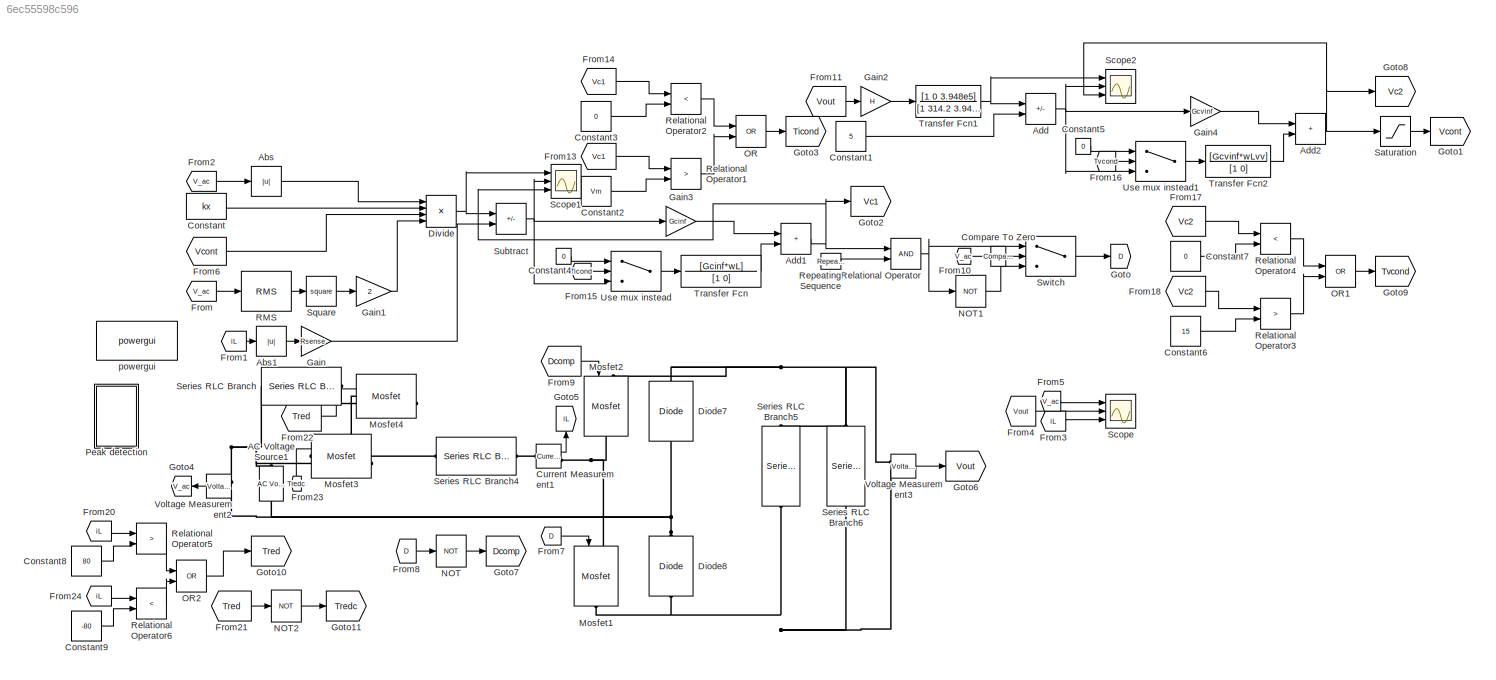
MODEL slx_6ec55598c596
KIND model
CONFIG AbsTol = auto
CONFIG EnableMultiTasking = off
CONFIG FixedStep = 1e-7
CONFIG MaxStep = auto
CONFIG MinStep = auto
CONFIG RelTol = 1e-3
CONFIG SampleTimeConstraint = Unconstrained
CONFIG SolverName = ode4
CONFIG StartTime = 0.0
CONFIG StopTime = 0.5
BLOCK [Reference] AC Voltage Source1  REF=spsACVoltageSourceLib/AC Voltage Source
  Ports = [0, 0, 0, 0, 0, 1, 1]
  SourceBlock = spsACVoltageSourceLib/AC Voltage Source
  SourceProductBaseCode = PS
  SourceType = AC Voltage Source
BLOCK [Abs] Abs
  SaturateOnIntegerOverflow = off
BLOCK [Abs] Abs1
  SaturateOnIntegerOverflow = off
BLOCK [Sum] Add
  IconShape = rectangular
  Inputs = -+
  Ports = [2, 1]
BLOCK [Sum] Add1
  IconShape = rectangular
  Ports = [2, 1]
BLOCK [Sum] Add2
  IconShape = rectangular
  Ports = [2, 1]
BLOCK [Reference] Compare To Zero  REF=hdlsllib/Logic and Bit
Operations/Compare
To Zero
  Ports = [1, 1]
  SourceBlock = hdlsllib/Logic and Bit\nOperations/Compare\nTo Zero
  SourceProductBaseCode = SL
  SourceType = Compare To Zero
BLOCK [Constant] Constant
  Value = kx
BLOCK [Constant] Constant1
  Value = 5
BLOCK [Constant] Constant2
  Value = Vm
BLOCK [Constant] Constant3
  Value = 0
BLOCK [Constant] Constant4
  Value = 0
BLOCK [Constant] Constant5
  Value = 0
BLOCK [Constant] Constant6
  Value = 15
BLOCK [Constant] Constant7
  Value = 0
BLOCK [Constant] Constant8
  Value = 80
BLOCK [Constant] Constant9
  Value = -80
BLOCK [Reference] Current Measurement1  REF=spsCurrentMeasurementLib/Current Measurement
  Ports = [0, 1, 0, 0, 0, 1, 1]
  SourceBlock = spsCurrentMeasurementLib/Current Measurement
  SourceProductBaseCode = PS
  SourceType = Current Measurement
  UserDataPersistent = on
BLOCK [Reference] Diode7  REF=spsDiodeLib/Diode
  NameLocation = right
  Ports = [0, 0, 0, 0, 0, 1, 1]
  SourceBlock = spsDiodeLib/Diode
  SourceProductBaseCode = PS
  SourceType = Diode
BLOCK [Reference] Diode8  REF=spsDiodeLib/Diode
  NameLocation = right
  Ports = [0, 0, 0, 0, 0, 1, 1]
  SourceBlock = spsDiodeLib/Diode
  SourceProductBaseCode = PS
  SourceType = Diode
BLOCK [Product] Divide
  Inputs = ***/
  Ports = [4, 1]
BLOCK [From] From
  GotoTag = V_ac
BLOCK [From] From1
  GotoTag = iL
BLOCK [From] From10
  GotoTag = V_ac
BLOCK [From] From11
  GotoTag = Vout
BLOCK [From] From13
  GotoTag = Vc1
BLOCK [From] From14
  GotoTag = Vc1
BLOCK [From] From15
  GotoTag = Ticond
BLOCK [From] From16
  GotoTag = Tvcond
BLOCK [From] From17
  GotoTag = Vc2
BLOCK [From] From18
  GotoTag = Vc2
BLOCK [From] From2
  GotoTag = V_ac
BLOCK [From] From20
  GotoTag = iL
BLOCK [From] From21
  GotoTag = Tred
BLOCK [From] From22
  GotoTag = Tred
BLOCK [From] From23
  GotoTag = Tredc
  NameLocation = right
BLOCK [From] From24
  GotoTag = iL
BLOCK [From] From3
  GotoTag = iL
BLOCK [From] From4
  GotoTag = Vout
BLOCK [From] From5
  GotoTag = V_ac
BLOCK [From] From6
  GotoTag = Vcont
BLOCK [From] From7
  GotoTag = D
BLOCK [From] From8
  GotoTag = D
BLOCK [From] From9
  GotoTag = Dcomp
BLOCK [Gain] Gain
  Gain = Rsense
BLOCK [Gain] Gain1
  Gain = 2
BLOCK [Gain] Gain2
  Gain = H
BLOCK [Gain] Gain3
  Gain = Gcinf
BLOCK [Gain] Gain4
  Gain = Gcvinf
BLOCK [Goto] Goto
  GotoTag = D
BLOCK [Goto] Goto1
  GotoTag = Vcont
BLOCK [Goto] Goto10
  GotoTag = Tred
BLOCK [Goto] Goto11
  GotoTag = Tredc
BLOCK [Goto] Goto2
  GotoTag = Vc1
BLOCK [Goto] Goto3
  GotoTag = Ticond
BLOCK [Goto] Goto4
  GotoTag = V_ac
BLOCK [Goto] Goto5
  GotoTag = iL
  NameLocation = right
BLOCK [Goto] Goto6
  GotoTag = Vout
BLOCK [Goto] Goto7
  GotoTag = Dcomp
BLOCK [Goto] Goto8
  GotoTag = Vc2
BLOCK [Goto] Goto9
  GotoTag = Tvcond
BLOCK [Reference] Mosfet1  REF=spsMosfetLib/Mosfet
  NameLocation = left
  Ports = [1, 0, 0, 0, 0, 1, 1]
  SourceBlock = spsMosfetLib/Mosfet
  SourceProductBaseCode = PS
  SourceType = Mosfet
BLOCK [Reference] Mosfet2  REF=spsMosfetLib/Mosfet
  NameLocation = left
  Ports = [1, 0, 0, 0, 0, 1, 1]
  SourceBlock = spsMosfetLib/Mosfet
  SourceProductBaseCode = PS
  SourceType = Mosfet
BLOCK [Reference] Mosfet3  REF=spsMosfetLib/Mosfet
  Ports = [1, 0, 0, 0, 0, 1, 1]
  SourceBlock = spsMosfetLib/Mosfet
  SourceProductBaseCode = PS
  SourceType = Mosfet
BLOCK [Reference] Mosfet4  REF=spsMosfetLib/Mosfet
  Ports = [1, 0, 0, 0, 0, 1, 1]
  SourceBlock = spsMosfetLib/Mosfet
  SourceProductBaseCode = PS
  SourceType = Mosfet
BLOCK [Logic] NOT
  AllPortsSameDT = off
  IconShape = distinctive
  Operator = NOT
  OutDataTypeStr = boolean
  Ports = [1, 1]
BLOCK [Logic] NOT1
  AllPortsSameDT = off
  IconShape = distinctive
  Operator = NOT
  OutDataTypeStr = boolean
  Ports = [1, 1]
BLOCK [Logic] NOT2
  AllPortsSameDT = off
  IconShape = distinctive
  Operator = NOT
  OutDataTypeStr = boolean
  Ports = [1, 1]
BLOCK [Logic] OR
  AllPortsSameDT = off
  IconShape = distinctive
  Operator = OR
  OutDataTypeStr = boolean
  Ports = [2, 1]
BLOCK [Logic] OR1
  AllPortsSameDT = off
  IconShape = distinctive
  Operator = OR
  OutDataTypeStr = boolean
  Ports = [2, 1]
BLOCK [Logic] OR2
  AllPortsSameDT = off
  IconShape = distinctive
  Operator = OR
  OutDataTypeStr = boolean
  Ports = [2, 1]
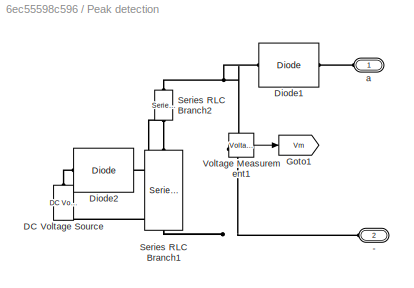
BLOCK [SubSystem] Peak detection
  Commented = on
  Ports = [0, 0, 0, 0, 0, 2]
  RequestExecContextInheritance = off
BLOCK [PMIOPort] Peak detection/-
  NameLocation = top
  Port = 2
  Side = Left
BLOCK [Reference] Peak detection/DC Voltage Source  REF=spsDCVoltageSourceLib/DC Voltage Source
  Ports = [0, 0, 0, 0, 0, 1, 1]
  SourceBlock = spsDCVoltageSourceLib/DC Voltage Source
  SourceProductBaseCode = PS
  SourceType = DC Voltage Source
BLOCK [Reference] Peak detection/Diode1  REF=spsDiodeLib/Diode
  NameLocation = top
  Ports = [0, 0, 0, 0, 0, 1, 1]
  SourceBlock = spsDiodeLib/Diode
  SourceProductBaseCode = PS
  SourceType = Diode
BLOCK [Reference] Peak detection/Diode2  REF=spsDiodeLib/Diode
  Ports = [0, 0, 0, 0, 0, 1, 1]
  SourceBlock = spsDiodeLib/Diode
  SourceProductBaseCode = PS
  SourceType = Diode
BLOCK [Goto] Peak detection/Goto1
  GotoTag = Vm
BLOCK [Reference] Peak detection/Series RLC Branch1  REF=spsSeriesRLCBranchLib/Series RLC Branch
  NameLocation = left
  Ports = [0, 0, 0, 0, 0, 1, 1]
  SourceBlock = spsSeriesRLCBranchLib/Series RLC Branch
  SourceProductBaseCode = PS
  SourceType = Series RLC Branch
BLOCK [Reference] Peak detection/Series RLC Branch2  REF=spsSeriesRLCBranchLib/Series RLC Branch
  NameLocation = left
  Ports = [0, 0, 0, 0, 0, 1, 1]
  SourceBlock = spsSeriesRLCBranchLib/Series RLC Branch
  SourceProductBaseCode = PS
  SourceType = Series RLC Branch
BLOCK [Reference] Peak detection/Voltage Measurement1  REF=spsVoltageMeasurementLib/Voltage Measurement
  Ports = [0, 1, 0, 0, 0, 2]
  SourceBlock = spsVoltageMeasurementLib/Voltage Measurement
  SourceProductBaseCode = PS
  SourceType = Voltage Measurement
  UserDataPersistent = on
BLOCK [PMIOPort] Peak detection/a
  Side = Left
BLOCK [Reference] RMS  REF=spsRMSLib/RMS
  Ports = [1, 1]
  SourceBlock = spsRMSLib/RMS
  SourceProductBaseCode = PS
  SourceType = RMS
BLOCK [RelationalOperator] Relational Operator
  InputSameDT = off
  OutDataTypeStr = boolean
  Ports = [2, 1]
  RndMeth = Simplest
BLOCK [RelationalOperator] Relational Operator1
  InputSameDT = off
  Operator = >
  OutDataTypeStr = boolean
  Ports = [2, 1]
  RndMeth = Simplest
BLOCK [RelationalOperator] Relational Operator2
  InputSameDT = off
  Operator = <
  OutDataTypeStr = boolean
  Ports = [2, 1]
  RndMeth = Simplest
BLOCK [RelationalOperator] Relational Operator3
  InputSameDT = off
  Operator = >
  OutDataTypeStr = boolean
  Ports = [2, 1]
  RndMeth = Simplest
BLOCK [RelationalOperator] Relational Operator4
  InputSameDT = off
  Operator = <
  OutDataTypeStr = boolean
  Ports = [2, 1]
  RndMeth = Simplest
BLOCK [RelationalOperator] Relational Operator5
  InputSameDT = off
  Operator = >
  OutDataTypeStr = boolean
  Ports = [2, 1]
  RndMeth = Simplest
BLOCK [RelationalOperator] Relational Operator6
  InputSameDT = off
  Operator = <
  OutDataTypeStr = boolean
  Ports = [2, 1]
  RndMeth = Simplest
BLOCK [Reference] Repeating Sequence  REF=simulink/Sources/Repeating
Sequence
  Ports = [0, 1]
  SourceBlock = simulink/Sources/Repeating\nSequence
  SourceProductBaseCode = SL
  SourceType = Repeating table
BLOCK [Saturate] Saturation
  LowerLimit = 0
  UpperLimit = 15
BLOCK [Scope] Scope
  Floating = off
  NumInputPorts = 3
  Ports = [3]
  ScopeSpecificationString = Simulink.scopes.TimeScopeBlockCfg('CurrentConfiguration', extmgr.ConfigurationSet(extmgr.Configuration('Core','General UI',true),extmgr.Configuration('Core','Source UI',true),extmgr.Configuration('Sources','WiredSimulink',true,'DataLogging',true,'DataLoggingVariableName','ScopeData1','DataLoggingSaveFormat','StructureWithTime'),extmgr.Configuration('Visuals','Time Domain',true,'SerializedDisplays'...<+2847ch>
BLOCK [Scope] Scope1
  Floating = off
  NumInputPorts = 3
  Ports = [3]
  ScopeSpecificationString = Simulink.scopes.TimeScopeBlockCfg('CurrentConfiguration', extmgr.ConfigurationSet(extmgr.Configuration('Core','General UI',true),extmgr.Configuration('Core','Source UI',true),extmgr.Configuration('Sources','WiredSimulink',true,'DataLoggingVariableName','ScopeData1','DataLoggingSaveFormat','StructureWithTime'),extmgr.Configuration('Visuals','Time Domain',true,'SerializedDisplays',{struct('MinYLimRe...<+2849ch>
BLOCK [Scope] Scope2
  Floating = off
  NumInputPorts = 3
  Ports = [3]
  ScopeSpecificationString = Simulink.scopes.TimeScopeBlockCfg('CurrentConfiguration', extmgr.ConfigurationSet(extmgr.Configuration('Core','General UI',true),extmgr.Configuration('Core','Source UI',true),extmgr.Configuration('Sources','WiredSimulink',true,'DataLoggingVariableName','ScopeData2','DataLoggingSaveFormat','StructureWithTime'),extmgr.Configuration('Visuals','Time Domain',true,'SerializedDisplays',{struct('MinYLimRe...<+2852ch>
BLOCK [Reference] Series RLC Branch  REF=spsSeriesRLCBranchLib/Series RLC Branch
  Ports = [0, 0, 0, 0, 0, 1, 1]
  SourceBlock = spsSeriesRLCBranchLib/Series RLC Branch
  SourceProductBaseCode = PS
  SourceType = Series RLC Branch
BLOCK [Reference] Series RLC Branch4  REF=spsSeriesRLCBranchLib/Series RLC Branch
  Ports = [0, 0, 0, 0, 0, 1, 1]
  SourceBlock = spsSeriesRLCBranchLib/Series RLC Branch
  SourceProductBaseCode = PS
  SourceType = Series RLC Branch
BLOCK [Reference] Series RLC Branch5  REF=spsSeriesRLCBranchLib/Series RLC Branch
  NameLocation = left
  Ports = [0, 0, 0, 0, 0, 1, 1]
  SourceBlock = spsSeriesRLCBranchLib/Series RLC Branch
  SourceProductBaseCode = PS
  SourceType = Series RLC Branch
BLOCK [Reference] Series RLC Branch6  REF=spsSeriesRLCBranchLib/Series RLC Branch
  NameLocation = left
  Ports = [0, 0, 0, 0, 0, 1, 1]
  SourceBlock = spsSeriesRLCBranchLib/Series RLC Branch
  SourceProductBaseCode = PS
  SourceType = Series RLC Branch
BLOCK [Math] Square
  Operator = square
  OutputSignalType = real
  Ports = [1, 1]
BLOCK [Sum] Subtract
  IconShape = rectangular
  Inputs = +-
  Ports = [2, 1]
BLOCK [Switch] Switch
  Criteria = u2 > Threshold
  InputSameDT = off
  SaturateOnIntegerOverflow = off
BLOCK [TransferFcn] Transfer Fcn
  Denominator = [1 0]
  Numerator = [Gcinf*wL]
BLOCK [TransferFcn] Transfer Fcn1
  Denominator = [1 314.2 3.948e5]
  Numerator = [1 0 3.948e5]
BLOCK [TransferFcn] Transfer Fcn2
  Denominator = [1 0]
  Numerator = [Gcvinf*wLvv]
BLOCK [Switch] Use mux instead
  Criteria = u2 > Threshold
  InputSameDT = off
  SaturateOnIntegerOverflow = off
  Threshold = 0.1
BLOCK [Switch] Use mux instead1
  Criteria = u2 > Threshold
  InputSameDT = off
  SaturateOnIntegerOverflow = off
  Threshold = 0.1
BLOCK [Reference] Voltage Measurement2  REF=spsVoltageMeasurementLib/Voltage Measurement
  Ports = [0, 1, 0, 0, 0, 2]
  SourceBlock = spsVoltageMeasurementLib/Voltage Measurement
  SourceProductBaseCode = PS
  SourceType = Voltage Measurement
  UserDataPersistent = on
BLOCK [Reference] Voltage Measurement3  REF=spsVoltageMeasurementLib/Voltage Measurement
  Ports = [0, 1, 0, 0, 0, 2]
  SourceBlock = spsVoltageMeasurementLib/Voltage Measurement
  SourceProductBaseCode = PS
  SourceType = Voltage Measurement
  UserDataPersistent = on
BLOCK [Reference] powergui  REF=spspowerguiLib/powergui
  Ports = []
  Priority = 1
  SourceBlock = spspowerguiLib/powergui
  SourceProductBaseCode = PS
  SourceType = PSB option menu block
LINE Abs1:1 -> Gain:1
LINE Abs:1 -> Divide:1
NET Add1:1 -> Goto2:1, Relational Operator:1, Scope1:3
NET Add2:1 -> Goto8:1, Saturation:1, Scope2:3
NET Add:1 -> Gain4:1, Scope2:2, Use mux instead1:3
LINE Compare To Zero:1 -> Switch:2
LINE Constant1:1 -> Add:2
LINE Constant2:1 -> Relational Operator1:2
LINE Constant3:1 -> Relational Operator2:2
LINE Constant4:1 -> Use mux instead:1
LINE Constant5:1 -> Use mux instead1:1
LINE Constant6:1 -> Relational Operator3:2
LINE Constant7:1 -> Relational Operator4:2
LINE Constant8:1 -> Relational Operator5:2
LINE Constant9:1 -> Relational Operator6:2
LINE Constant:1 -> Divide:2
LINE Current Measurement1:1 -> Goto5:1
NET Divide:1 -> Scope1:1, Subtract:1
LINE From10:1 -> Compare To Zero:1
LINE From11:1 -> Gain2:1
LINE From13:1 -> Relational Operator1:1
LINE From14:1 -> Relational Operator2:1
LINE From15:1 -> Use mux instead:2
LINE From16:1 -> Use mux instead1:2
LINE From17:1 -> Relational Operator4:1
LINE From18:1 -> Relational Operator3:1
LINE From1:1 -> Abs1:1
LINE From20:1 -> Relational Operator5:1
LINE From21:1 -> NOT2:1
LINE From22:1 -> Mosfet4:1
LINE From23:1 -> Mosfet3:1
LINE From24:1 -> Relational Operator6:1
LINE From2:1 -> Abs:1
LINE From3:1 -> Scope:3
LINE From4:1 -> Scope:2
LINE From5:1 -> Scope:1
LINE From6:1 -> Divide:3
LINE From7:1 -> Mosfet1:1
LINE From8:1 -> NOT:1
LINE From9:1 -> Mosfet2:1
LINE From:1 -> RMS:1
LINE Gain1:1 -> Divide:4
LINE Gain2:1 -> Transfer Fcn1:1
LINE Gain3:1 -> Add1:1
LINE Gain4:1 -> Add2:1
LINE Gain:1 -> Subtract:2
LINE NOT1:1 -> Switch:3
LINE NOT2:1 -> Goto11:1
LINE NOT:1 -> Goto7:1
LINE OR1:1 -> Goto9:1
LINE OR2:1 -> Goto10:1
LINE OR:1 -> Goto3:1
LINE Peak detection/Voltage Measurement1:1 -> Peak detection/Goto1:1
LINE RMS:1 -> Square:1
LINE Relational Operator1:1 -> OR:2
LINE Relational Operator2:1 -> OR:1
LINE Relational Operator3:1 -> OR1:2
LINE Relational Operator4:1 -> OR1:1
LINE Relational Operator5:1 -> OR2:1
LINE Relational Operator6:1 -> OR2:2
NET Relational Operator:1 -> NOT1:1, Switch:1
LINE Repeating Sequence:1 -> Relational Operator:2
LINE Saturation:1 -> Goto1:1
LINE Square:1 -> Gain1:1
NET Subtract:1 -> Gain3:1, Scope1:2, Use mux instead:3
LINE Switch:1 -> Goto:1
NET Transfer Fcn1:1 -> Add:1, Scope2:1
LINE Transfer Fcn2:1 -> Add2:2
LINE Transfer Fcn:1 -> Add1:2
LINE Use mux instead1:1 -> Transfer Fcn2:1
LINE Use mux instead:1 -> Transfer Fcn:1
LINE Voltage Measurement2:1 -> Goto4:1
LINE Voltage Measurement3:1 -> Goto6:1
PNET net1: AC Voltage Source1:LConn1 -- Diode7:LConn1 -- Diode8:RConn1 -- Voltage Measurement2:LConn2
PNET net2: AC Voltage Source1:RConn1 -- Mosfet3:LConn1 -- Series RLC Branch:LConn1 -- Voltage Measurement2:LConn1
PLINE Current Measurement1:LConn1 -- Series RLC Branch4:RConn1
PNET net3: Current Measurement1:RConn1 -- Mosfet1:LConn1 -- Mosfet2:RConn1
PNET net4: Diode7:RConn1 -- Mosfet2:LConn1 -- Series RLC Branch5:LConn1 -- Series RLC Branch6:LConn1 -- Voltage Measurement3:LConn1
PNET net5: Diode8:LConn1 -- Mosfet1:RConn1 -- Series RLC Branch5:RConn1 -- Series RLC Branch6:RConn1 -- Voltage Measurement3:LConn2
PNET net6: Mosfet3:RConn1 -- Mosfet4:RConn1 -- Series RLC Branch4:LConn1
PLINE Mosfet4:LConn1 -- Series RLC Branch:RConn1
PNET net7: Peak detection/-:RConn1 -- Peak detection/DC Voltage Source:LConn1 -- Peak detection/Series RLC Branch1:RConn1 -- Peak detection/Voltage Measurement1:LConn2
PLINE Peak detection/DC Voltage Source:RConn1 -- Peak detection/Diode2:LConn1
PLINE Peak detection/Diode1:LConn1 -- Peak detection/a:RConn1
PNET net8: Peak detection/Diode1:RConn1 -- Peak detection/Series RLC Branch2:LConn1 -- Peak detection/Voltage Measurement1:LConn1
PNET net9: Peak detection/Diode2:RConn1 -- Peak detection/Series RLC Branch1:LConn1 -- Peak detection/Series RLC Branch2:RConn1
note: NET lines group one-source signal fan-out (src -> all destinations, sorted); 1:1 wires keep LINE; PNET lines group multi-terminal physical nets as a canonical sorted terminal list (undirected conserving connections); 2-terminal nets keep the pairwise PLINE form
